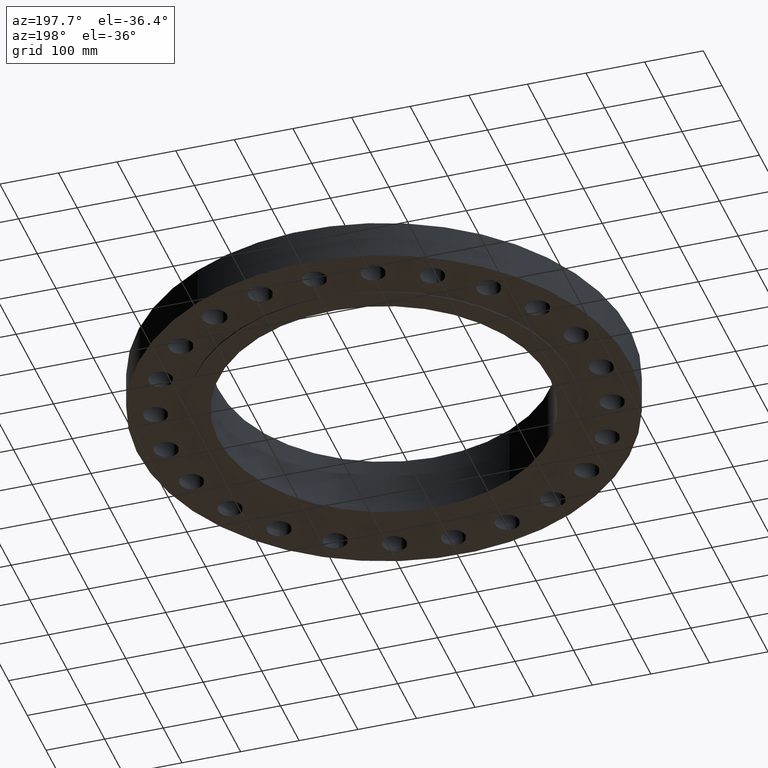
[diagram: clean part render]
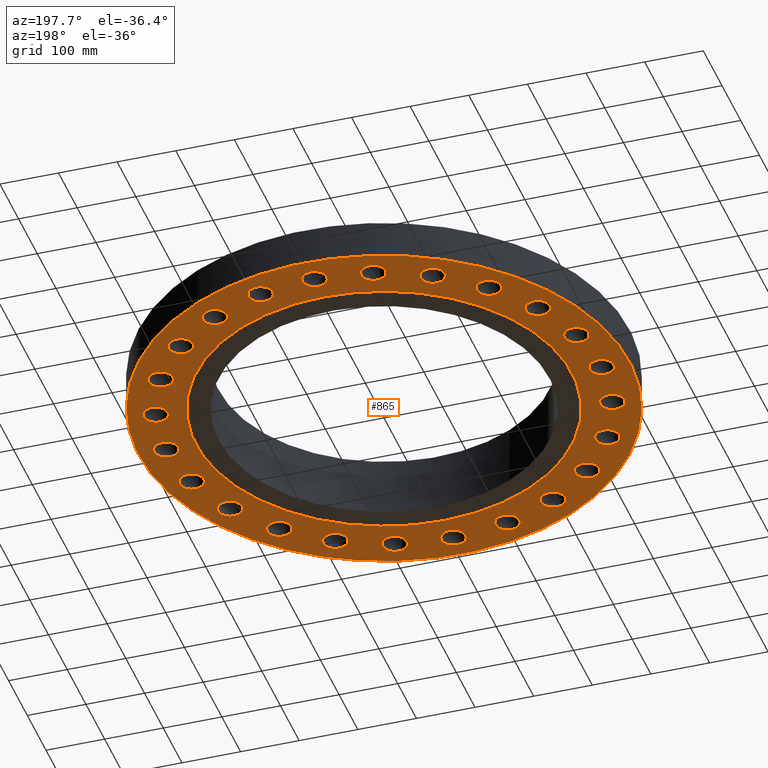
[diagram: same view with one face highlighted and labeled with its STEP entity id]
A machine part, auxiliary view. The second image highlights one B-rep face of the part: STEP entity #865.
In plain terms, the highlighted planar face has unit normal (0, 0, -1).
Its self-contained STEP definition (entity closure, byte-faithful):
#51=AXIS2_PLACEMENT_3D('Circle Axis2P3D',#49,#50,$) ;
#77=AXIS2_PLACEMENT_3D('Circle Axis2P3D',#75,#76,$) ;
#99=AXIS2_PLACEMENT_3D('Circle Axis2P3D',#97,#98,$) ;
#134=AXIS2_PLACEMENT_3D('Circle Axis2P3D',#132,#133,$) ;
#405=AXIS2_PLACEMENT_3D('Circle Axis2P3D',#403,#404,$) ;
#424=AXIS2_PLACEMENT_3D('Circle Axis2P3D',#422,#423,$) ;
#437=AXIS2_PLACEMENT_3D('Plane Axis2P3D',#434,#435,#436) ;
#453=AXIS2_PLACEMENT_3D('Circle Axis2P3D',#451,#452,$) ;
#462=AXIS2_PLACEMENT_3D('Circle Axis2P3D',#460,#461,$) ;
#471=AXIS2_PLACEMENT_3D('Circle Axis2P3D',#469,#470,$) ;
#480=AXIS2_PLACEMENT_3D('Circle Axis2P3D',#478,#479,$) ;
#489=AXIS2_PLACEMENT_3D('Circle Axis2P3D',#487,#488,$) ;
#498=AXIS2_PLACEMENT_3D('Circle Axis2P3D',#496,#497,$) ;
#507=AXIS2_PLACEMENT_3D('Circle Axis2P3D',#505,#506,$) ;
#516=AXIS2_PLACEMENT_3D('Circle Axis2P3D',#514,#515,$) ;
#525=AXIS2_PLACEMENT_3D('Circle Axis2P3D',#523,#524,$) ;
#534=AXIS2_PLACEMENT_3D('Circle Axis2P3D',#532,#533,$) ;
#543=AXIS2_PLACEMENT_3D('Circle Axis2P3D',#541,#542,$) ;
#552=AXIS2_PLACEMENT_3D('Circle Axis2P3D',#550,#551,$) ;
#561=AXIS2_PLACEMENT_3D('Circle Axis2P3D',#559,#560,$) ;
#570=AXIS2_PLACEMENT_3D('Circle Axis2P3D',#568,#569,$) ;
#579=AXIS2_PLACEMENT_3D('Circle Axis2P3D',#577,#578,$) ;
#588=AXIS2_PLACEMENT_3D('Circle Axis2P3D',#586,#587,$) ;
#597=AXIS2_PLACEMENT_3D('Circle Axis2P3D',#595,#596,$) ;
#606=AXIS2_PLACEMENT_3D('Circle Axis2P3D',#604,#605,$) ;
#615=AXIS2_PLACEMENT_3D('Circle Axis2P3D',#613,#614,$) ;
#624=AXIS2_PLACEMENT_3D('Circle Axis2P3D',#622,#623,$) ;
#633=AXIS2_PLACEMENT_3D('Circle Axis2P3D',#631,#632,$) ;
#642=AXIS2_PLACEMENT_3D('Circle Axis2P3D',#640,#641,$) ;
#651=AXIS2_PLACEMENT_3D('Circle Axis2P3D',#649,#650,$) ;
#660=AXIS2_PLACEMENT_3D('Circle Axis2P3D',#658,#659,$) ;
#669=AXIS2_PLACEMENT_3D('Circle Axis2P3D',#667,#668,$) ;
#678=AXIS2_PLACEMENT_3D('Circle Axis2P3D',#676,#677,$) ;
#687=AXIS2_PLACEMENT_3D('Circle Axis2P3D',#685,#686,$) ;
#696=AXIS2_PLACEMENT_3D('Circle Axis2P3D',#694,#695,$) ;
#705=AXIS2_PLACEMENT_3D('Circle Axis2P3D',#703,#704,$) ;
#714=AXIS2_PLACEMENT_3D('Circle Axis2P3D',#712,#713,$) ;
#723=AXIS2_PLACEMENT_3D('Circle Axis2P3D',#721,#722,$) ;
#732=AXIS2_PLACEMENT_3D('Circle Axis2P3D',#730,#731,$) ;
#741=AXIS2_PLACEMENT_3D('Circle Axis2P3D',#739,#740,$) ;
#750=AXIS2_PLACEMENT_3D('Circle Axis2P3D',#748,#749,$) ;
#759=AXIS2_PLACEMENT_3D('Circle Axis2P3D',#757,#758,$) ;
#768=AXIS2_PLACEMENT_3D('Circle Axis2P3D',#766,#767,$) ;
#777=AXIS2_PLACEMENT_3D('Circle Axis2P3D',#775,#776,$) ;
#786=AXIS2_PLACEMENT_3D('Circle Axis2P3D',#784,#785,$) ;
#795=AXIS2_PLACEMENT_3D('Circle Axis2P3D',#793,#794,$) ;
#804=AXIS2_PLACEMENT_3D('Circle Axis2P3D',#802,#803,$) ;
#813=AXIS2_PLACEMENT_3D('Circle Axis2P3D',#811,#812,$) ;
#822=AXIS2_PLACEMENT_3D('Circle Axis2P3D',#820,#821,$) ;
#831=AXIS2_PLACEMENT_3D('Circle Axis2P3D',#829,#830,$) ;
#840=AXIS2_PLACEMENT_3D('Circle Axis2P3D',#838,#839,$) ;
#849=AXIS2_PLACEMENT_3D('Circle Axis2P3D',#847,#848,$) ;
#858=AXIS2_PLACEMENT_3D('Circle Axis2P3D',#856,#857,$) ;
#44=CARTESIAN_POINT('Vertex',(13.9097702121,0.390731813964,0.)) ;
#49=CARTESIAN_POINT('Axis2P3D Location',(14.6250000001,0.,0.)) ;
#53=CARTESIAN_POINT('Vertex',(15.340229788,-0.390731813964,0.)) ;
#75=CARTESIAN_POINT('Axis2P3D Location',(14.6250000001,0.,0.)) ;
#97=CARTESIAN_POINT('Axis2P3D Location',(0.,0.,2.51767111096E-015)) ;
#101=CARTESIAN_POINT('Vertex',(-7.910521387,-14.4801122712,2.51767111096E-015)) ;
#103=CARTESIAN_POINT('Vertex',(7.910521387,14.4801122712,2.51767111096E-015)) ;
#132=CARTESIAN_POINT('Axis2P3D Location',(0.,0.,2.51767111096E-015)) ;
#400=CARTESIAN_POINT('Vertex',(-6.0527474249,-11.0794798439,1.39870617276E-015)) ;
#403=CARTESIAN_POINT('Axis2P3D Location',(0.,0.,1.67844740731E-015)) ;
#407=CARTESIAN_POINT('Vertex',(6.0527474249,11.0794798439,1.39870617276E-015)) ;
#422=CARTESIAN_POINT('Axis2P3D Location',(0.,0.,1.67844740731E-015)) ;
#434=CARTESIAN_POINT('Axis2P3D Location',(0.,12.6250000001,0.)) ;
#451=CARTESIAN_POINT('Axis2P3D Location',(14.1266652095,-3.78522853464,0.)) ;
#455=CARTESIAN_POINT('Vertex',(13.5369351206,-3.22269549363,0.)) ;
#457=CARTESIAN_POINT('Vertex',(14.7163952985,-4.34776157564,0.)) ;
#460=CARTESIAN_POINT('Axis2P3D Location',(14.1266652095,-3.78522853464,0.)) ;
#469=CARTESIAN_POINT('Axis2P3D Location',(12.6656215304,-7.31250000003,0.)) ;
#473=CARTESIAN_POINT('Vertex',(12.2415802715,-6.6165014291,0.)) ;
#475=CARTESIAN_POINT('Vertex',(13.0896627893,-8.00849857096,0.)) ;
#478=CARTESIAN_POINT('Axis2P3D Location',(12.6656215304,-7.31250000003,0.)) ;
#487=CARTESIAN_POINT('Axis2P3D Location',(10.3414366749,-10.3414366749,0.)) ;
#491=CARTESIAN_POINT('Vertex',(10.111981957,-9.55940372645,0.)) ;
#493=CARTESIAN_POINT('Vertex',(10.5708913928,-11.1234696233,0.)) ;
#496=CARTESIAN_POINT('Axis2P3D Location',(10.3414366749,-10.3414366749,0.)) ;
#505=CARTESIAN_POINT('Axis2P3D Location',(7.31250000003,-12.6656215304,0.)) ;
#509=CARTESIAN_POINT('Vertex',(7.29326878302,-11.8508484575,0.)) ;
#511=CARTESIAN_POINT('Vertex',(7.33173121704,-13.4803946033,0.)) ;
#514=CARTESIAN_POINT('Axis2P3D Location',(7.31250000003,-12.6656215304,0.)) ;
#523=CARTESIAN_POINT('Axis2P3D Location',(3.78522853464,-14.1266652095,0.)) ;
#527=CARTESIAN_POINT('Vertex',(3.97753139416,-13.3346774506,0.)) ;
#529=CARTESIAN_POINT('Vertex',(3.59292567512,-14.9186529684,0.)) ;
#532=CARTESIAN_POINT('Axis2P3D Location',(3.78522853464,-14.1266652095,0.)) ;
#541=CARTESIAN_POINT('Axis2P3D Location',(-1.39870617276E-015,-14.6250000001,0.)) ;
#545=CARTESIAN_POINT('Vertex',(0.390731813964,-13.9097702121,0.)) ;
#547=CARTESIAN_POINT('Vertex',(-0.390731813964,-15.340229788,0.)) ;
#550=CARTESIAN_POINT('Axis2P3D Location',(-2.44773580232E-015,-14.6250000001,0.)) ;
#559=CARTESIAN_POINT('Axis2P3D Location',(-3.78522853464,-14.1266652095,0.)) ;
#563=CARTESIAN_POINT('Vertex',(-3.22269549363,-13.5369351206,0.)) ;
#565=CARTESIAN_POINT('Vertex',(-4.34776157564,-14.7163952985,-1.1189649382E-015)) ;
#568=CARTESIAN_POINT('Axis2P3D Location',(-3.78522853464,-14.1266652095,0.)) ;
#577=CARTESIAN_POINT('Axis2P3D Location',(-7.31250000003,-12.6656215304,0.)) ;
#581=CARTESIAN_POINT('Vertex',(-6.6165014291,-12.2415802715,0.)) ;
#583=CARTESIAN_POINT('Vertex',(-8.00849857096,-13.0896627893,-2.23792987641E-015)) ;
#586=CARTESIAN_POINT('Axis2P3D Location',(-7.31250000003,-12.6656215304,0.)) ;
#595=CARTESIAN_POINT('Axis2P3D Location',(-10.3414366749,-10.3414366749,0.)) ;
#599=CARTESIAN_POINT('Vertex',(-9.55940372645,-10.111981957,0.)) ;
#601=CARTESIAN_POINT('Vertex',(-11.1234696233,-10.5708913928,0.)) ;
#604=CARTESIAN_POINT('Axis2P3D Location',(-10.3414366749,-10.3414366749,0.)) ;
#613=CARTESIAN_POINT('Axis2P3D Location',(-12.6656215304,-7.31250000003,0.)) ;
#617=CARTESIAN_POINT('Vertex',(-11.8508484575,-7.29326878302,0.)) ;
#619=CARTESIAN_POINT('Vertex',(-13.4803946033,-7.33173121704,0.)) ;
#622=CARTESIAN_POINT('Axis2P3D Location',(-12.6656215304,-7.31250000003,0.)) ;
#631=CARTESIAN_POINT('Axis2P3D Location',(-14.1266652095,-3.78522853464,0.)) ;
#635=CARTESIAN_POINT('Vertex',(-13.3346774506,-3.97753139416,0.)) ;
#637=CARTESIAN_POINT('Vertex',(-14.9186529684,-3.59292567512,0.)) ;
#640=CARTESIAN_POINT('Axis2P3D Location',(-14.1266652095,-3.78522853464,0.)) ;
#649=CARTESIAN_POINT('Axis2P3D Location',(-14.6250000001,0.,0.)) ;
#653=CARTESIAN_POINT('Vertex',(-13.9097702121,-0.390731813964,0.)) ;
#655=CARTESIAN_POINT('Vertex',(-15.340229788,0.390731813964,0.)) ;
#658=CARTESIAN_POINT('Axis2P3D Location',(-14.6250000001,-2.23792987641E-015,0.)) ;
#667=CARTESIAN_POINT('Axis2P3D Location',(-14.1266652095,3.78522853464,0.)) ;
#671=CARTESIAN_POINT('Vertex',(-13.5369351206,3.22269549363,0.)) ;
#673=CARTESIAN_POINT('Vertex',(-14.7163952985,4.34776157564,0.)) ;
#676=CARTESIAN_POINT('Axis2P3D Location',(-14.1266652095,3.78522853464,0.)) ;
#685=CARTESIAN_POINT('Axis2P3D Location',(-12.6656215304,7.31250000003,0.)) ;
#689=CARTESIAN_POINT('Vertex',(-12.2415802715,6.6165014291,0.)) ;
#691=CARTESIAN_POINT('Vertex',(-13.0896627893,8.00849857096,0.)) ;
#694=CARTESIAN_POINT('Axis2P3D Location',(-12.6656215304,7.31250000003,0.)) ;
#703=CARTESIAN_POINT('Axis2P3D Location',(-10.3414366749,10.3414366749,0.)) ;
#707=CARTESIAN_POINT('Vertex',(-10.111981957,9.55940372645,0.)) ;
#709=CARTESIAN_POINT('Vertex',(-10.5708913928,11.1234696233,0.)) ;
#712=CARTESIAN_POINT('Axis2P3D Location',(-10.3414366749,10.3414366749,0.)) ;
#721=CARTESIAN_POINT('Axis2P3D Location',(-7.31250000003,12.6656215304,0.)) ;
#725=CARTESIAN_POINT('Vertex',(-7.29326878302,11.8508484575,0.)) ;
#727=CARTESIAN_POINT('Vertex',(-7.33173121704,13.4803946033,0.)) ;
#730=CARTESIAN_POINT('Axis2P3D Location',(-7.31250000003,12.6656215304,0.)) ;
#739=CARTESIAN_POINT('Axis2P3D Location',(-3.78522853464,14.1266652095,0.)) ;
#743=CARTESIAN_POINT('Vertex',(-3.97753139416,13.3346774506,0.)) ;
#745=CARTESIAN_POINT('Vertex',(-3.59292567512,14.9186529684,0.)) ;
#748=CARTESIAN_POINT('Axis2P3D Location',(-3.78522853464,14.1266652095,0.)) ;
#757=CARTESIAN_POINT('Axis2P3D Location',(-3.35689481461E-015,14.6250000001,0.)) ;
#761=CARTESIAN_POINT('Vertex',(-0.390731813964,13.9097702121,0.)) ;
#763=CARTESIAN_POINT('Vertex',(0.390731813964,15.340229788,0.)) ;
#766=CARTESIAN_POINT('Axis2P3D Location',(-2.09805925913E-015,14.6250000001,0.)) ;
#775=CARTESIAN_POINT('Axis2P3D Location',(3.78522853464,14.1266652095,0.)) ;
#779=CARTESIAN_POINT('Vertex',(3.22269549363,13.5369351206,0.)) ;
#781=CARTESIAN_POINT('Vertex',(4.34776157564,14.7163952985,0.)) ;
#784=CARTESIAN_POINT('Axis2P3D Location',(3.78522853464,14.1266652095,0.)) ;
#793=CARTESIAN_POINT('Axis2P3D Location',(7.31250000003,12.6656215304,0.)) ;
#797=CARTESIAN_POINT('Vertex',(6.6165014291,12.2415802715,0.)) ;
#799=CARTESIAN_POINT('Vertex',(8.00849857096,13.0896627893,0.)) ;
#802=CARTESIAN_POINT('Axis2P3D Location',(7.31250000003,12.6656215304,0.)) ;
#811=CARTESIAN_POINT('Axis2P3D Location',(10.3414366749,10.3414366749,0.)) ;
#815=CARTESIAN_POINT('Vertex',(9.55940372645,10.111981957,0.)) ;
#817=CARTESIAN_POINT('Vertex',(11.1234696233,10.5708913928,0.)) ;
#820=CARTESIAN_POINT('Axis2P3D Location',(10.3414366749,10.3414366749,0.)) ;
#829=CARTESIAN_POINT('Axis2P3D Location',(12.6656215304,7.31250000003,0.)) ;
#833=CARTESIAN_POINT('Vertex',(11.8508484575,7.29326878302,0.)) ;
#835=CARTESIAN_POINT('Vertex',(13.4803946033,7.33173121704,0.)) ;
#838=CARTESIAN_POINT('Axis2P3D Location',(12.6656215304,7.31250000003,0.)) ;
#847=CARTESIAN_POINT('Axis2P3D Location',(14.1266652095,3.78522853464,0.)) ;
#851=CARTESIAN_POINT('Vertex',(13.3346774506,3.97753139416,0.)) ;
#853=CARTESIAN_POINT('Vertex',(14.9186529684,3.59292567512,0.)) ;
#856=CARTESIAN_POINT('Axis2P3D Location',(14.1266652095,3.78522853464,0.)) ;
#50=DIRECTION('Axis2P3D Direction',(0.,-0.,-0.0393700787402)) ;
#76=DIRECTION('Axis2P3D Direction',(0.,-0.,-0.0393700787402)) ;
#98=DIRECTION('Axis2P3D Direction',(0.,0.,-0.0393700787402)) ;
#133=DIRECTION('Axis2P3D Direction',(0.,0.,-0.0393700787402)) ;
#404=DIRECTION('Axis2P3D Direction',(0.,0.,-0.0393700787402)) ;
#423=DIRECTION('Axis2P3D Direction',(0.,0.,-0.0393700787402)) ;
#435=DIRECTION('Axis2P3D Direction',(0.,0.,-0.0393700787402)) ;
#436=DIRECTION('Axis2P3D XDirection',(0.0393700787402,0.,0.)) ;
#452=DIRECTION('Axis2P3D Direction',(0.,0.,-0.0393700787402)) ;
#461=DIRECTION('Axis2P3D Direction',(0.,0.,-0.0393700787402)) ;
#470=DIRECTION('Axis2P3D Direction',(0.,0.,-0.0393700787402)) ;
#479=DIRECTION('Axis2P3D Direction',(0.,0.,-0.0393700787402)) ;
#488=DIRECTION('Axis2P3D Direction',(0.,0.,-0.0393700787402)) ;
#497=DIRECTION('Axis2P3D Direction',(0.,0.,-0.0393700787402)) ;
#506=DIRECTION('Axis2P3D Direction',(0.,0.,-0.0393700787402)) ;
#515=DIRECTION('Axis2P3D Direction',(0.,0.,-0.0393700787402)) ;
#524=DIRECTION('Axis2P3D Direction',(0.,0.,-0.0393700787402)) ;
#533=DIRECTION('Axis2P3D Direction',(0.,0.,-0.0393700787402)) ;
#542=DIRECTION('Axis2P3D Direction',(0.,0.,-0.0393700787402)) ;
#551=DIRECTION('Axis2P3D Direction',(0.,0.,-0.0393700787402)) ;
#560=DIRECTION('Axis2P3D Direction',(0.,0.,-0.0393700787402)) ;
#569=DIRECTION('Axis2P3D Direction',(0.,0.,-0.0393700787402)) ;
#578=DIRECTION('Axis2P3D Direction',(0.,0.,-0.0393700787402)) ;
#587=DIRECTION('Axis2P3D Direction',(0.,0.,-0.0393700787402)) ;
#596=DIRECTION('Axis2P3D Direction',(0.,0.,-0.0393700787402)) ;
#605=DIRECTION('Axis2P3D Direction',(0.,0.,-0.0393700787402)) ;
#614=DIRECTION('Axis2P3D Direction',(0.,0.,-0.0393700787402)) ;
#623=DIRECTION('Axis2P3D Direction',(0.,0.,-0.0393700787402)) ;
#632=DIRECTION('Axis2P3D Direction',(0.,0.,-0.0393700787402)) ;
#641=DIRECTION('Axis2P3D Direction',(0.,0.,-0.0393700787402)) ;
#650=DIRECTION('Axis2P3D Direction',(0.,0.,-0.0393700787402)) ;
#659=DIRECTION('Axis2P3D Direction',(0.,0.,-0.0393700787402)) ;
#668=DIRECTION('Axis2P3D Direction',(0.,0.,-0.0393700787402)) ;
#677=DIRECTION('Axis2P3D Direction',(0.,0.,-0.0393700787402)) ;
#686=DIRECTION('Axis2P3D Direction',(0.,0.,-0.0393700787402)) ;
#695=DIRECTION('Axis2P3D Direction',(0.,0.,-0.0393700787402)) ;
#704=DIRECTION('Axis2P3D Direction',(0.,0.,-0.0393700787402)) ;
#713=DIRECTION('Axis2P3D Direction',(0.,0.,-0.0393700787402)) ;
#722=DIRECTION('Axis2P3D Direction',(0.,0.,-0.0393700787402)) ;
#731=DIRECTION('Axis2P3D Direction',(0.,0.,-0.0393700787402)) ;
#740=DIRECTION('Axis2P3D Direction',(0.,0.,-0.0393700787402)) ;
#749=DIRECTION('Axis2P3D Direction',(0.,0.,-0.0393700787402)) ;
#758=DIRECTION('Axis2P3D Direction',(0.,0.,-0.0393700787402)) ;
#767=DIRECTION('Axis2P3D Direction',(0.,0.,-0.0393700787402)) ;
#776=DIRECTION('Axis2P3D Direction',(0.,0.,-0.0393700787402)) ;
#785=DIRECTION('Axis2P3D Direction',(0.,0.,-0.0393700787402)) ;
#794=DIRECTION('Axis2P3D Direction',(0.,0.,-0.0393700787402)) ;
#803=DIRECTION('Axis2P3D Direction',(0.,0.,-0.0393700787402)) ;
#812=DIRECTION('Axis2P3D Direction',(0.,0.,-0.0393700787402)) ;
#821=DIRECTION('Axis2P3D Direction',(0.,0.,-0.0393700787402)) ;
#830=DIRECTION('Axis2P3D Direction',(0.,0.,-0.0393700787402)) ;
#839=DIRECTION('Axis2P3D Direction',(0.,0.,-0.0393700787402)) ;
#848=DIRECTION('Axis2P3D Direction',(0.,0.,-0.0393700787402)) ;
#857=DIRECTION('Axis2P3D Direction',(0.,0.,-0.0393700787402)) ;
#440=ORIENTED_EDGE('',*,*,#105,.T.) ;
#441=ORIENTED_EDGE('',*,*,#136,.T.) ;
#444=ORIENTED_EDGE('',*,*,#79,.F.) ;
#445=ORIENTED_EDGE('',*,*,#55,.F.) ;
#448=ORIENTED_EDGE('',*,*,#426,.F.) ;
#449=ORIENTED_EDGE('',*,*,#409,.F.) ;
#466=ORIENTED_EDGE('',*,*,#459,.F.) ;
#467=ORIENTED_EDGE('',*,*,#464,.F.) ;
#484=ORIENTED_EDGE('',*,*,#477,.F.) ;
#485=ORIENTED_EDGE('',*,*,#482,.F.) ;
#502=ORIENTED_EDGE('',*,*,#495,.F.) ;
#503=ORIENTED_EDGE('',*,*,#500,.F.) ;
#520=ORIENTED_EDGE('',*,*,#513,.F.) ;
#521=ORIENTED_EDGE('',*,*,#518,.F.) ;
#538=ORIENTED_EDGE('',*,*,#531,.F.) ;
#539=ORIENTED_EDGE('',*,*,#536,.F.) ;
#556=ORIENTED_EDGE('',*,*,#549,.F.) ;
#557=ORIENTED_EDGE('',*,*,#554,.F.) ;
#574=ORIENTED_EDGE('',*,*,#567,.F.) ;
#575=ORIENTED_EDGE('',*,*,#572,.F.) ;
#592=ORIENTED_EDGE('',*,*,#585,.F.) ;
#593=ORIENTED_EDGE('',*,*,#590,.F.) ;
#610=ORIENTED_EDGE('',*,*,#603,.F.) ;
#611=ORIENTED_EDGE('',*,*,#608,.F.) ;
#628=ORIENTED_EDGE('',*,*,#621,.F.) ;
#629=ORIENTED_EDGE('',*,*,#626,.F.) ;
#646=ORIENTED_EDGE('',*,*,#639,.F.) ;
#647=ORIENTED_EDGE('',*,*,#644,.F.) ;
#664=ORIENTED_EDGE('',*,*,#657,.F.) ;
#665=ORIENTED_EDGE('',*,*,#662,.F.) ;
#682=ORIENTED_EDGE('',*,*,#675,.F.) ;
#683=ORIENTED_EDGE('',*,*,#680,.F.) ;
#700=ORIENTED_EDGE('',*,*,#693,.F.) ;
#701=ORIENTED_EDGE('',*,*,#698,.F.) ;
#718=ORIENTED_EDGE('',*,*,#711,.F.) ;
#719=ORIENTED_EDGE('',*,*,#716,.F.) ;
#736=ORIENTED_EDGE('',*,*,#729,.F.) ;
#737=ORIENTED_EDGE('',*,*,#734,.F.) ;
#754=ORIENTED_EDGE('',*,*,#747,.F.) ;
#755=ORIENTED_EDGE('',*,*,#752,.F.) ;
#772=ORIENTED_EDGE('',*,*,#765,.F.) ;
#773=ORIENTED_EDGE('',*,*,#770,.F.) ;
#790=ORIENTED_EDGE('',*,*,#783,.F.) ;
#791=ORIENTED_EDGE('',*,*,#788,.F.) ;
#808=ORIENTED_EDGE('',*,*,#801,.F.) ;
#809=ORIENTED_EDGE('',*,*,#806,.F.) ;
#826=ORIENTED_EDGE('',*,*,#819,.F.) ;
#827=ORIENTED_EDGE('',*,*,#824,.F.) ;
#844=ORIENTED_EDGE('',*,*,#837,.F.) ;
#845=ORIENTED_EDGE('',*,*,#842,.F.) ;
#862=ORIENTED_EDGE('',*,*,#855,.F.) ;
#863=ORIENTED_EDGE('',*,*,#860,.F.) ;
#446=FACE_BOUND('',#443,.T.) ;
#450=FACE_BOUND('',#447,.T.) ;
#468=FACE_BOUND('',#465,.T.) ;
#486=FACE_BOUND('',#483,.T.) ;
#504=FACE_BOUND('',#501,.T.) ;
#522=FACE_BOUND('',#519,.T.) ;
#540=FACE_BOUND('',#537,.T.) ;
#558=FACE_BOUND('',#555,.T.) ;
#576=FACE_BOUND('',#573,.T.) ;
#594=FACE_BOUND('',#591,.T.) ;
#612=FACE_BOUND('',#609,.T.) ;
#630=FACE_BOUND('',#627,.T.) ;
#648=FACE_BOUND('',#645,.T.) ;
#666=FACE_BOUND('',#663,.T.) ;
#684=FACE_BOUND('',#681,.T.) ;
#702=FACE_BOUND('',#699,.T.) ;
#720=FACE_BOUND('',#717,.T.) ;
#738=FACE_BOUND('',#735,.T.) ;
#756=FACE_BOUND('',#753,.T.) ;
#774=FACE_BOUND('',#771,.T.) ;
#792=FACE_BOUND('',#789,.T.) ;
#810=FACE_BOUND('',#807,.T.) ;
#828=FACE_BOUND('',#825,.T.) ;
#846=FACE_BOUND('',#843,.T.) ;
#864=FACE_BOUND('',#861,.T.) ;
#865=ADVANCED_FACE('PartBody',(#442,#446,#450,#468,#486,#504,#522,#540,#558,#576,#594,#612,#630,#648,#666,#684,#702,#720,#738,#756,#774,#792,#810,#828,#846,#864),#438,.T.) ;
#52=CIRCLE('generated circle',#51,0.815000000003) ;
#78=CIRCLE('generated circle',#77,0.815000000003) ;
#100=CIRCLE('generated circle',#99,16.5000000001) ;
#135=CIRCLE('generated circle',#134,16.5000000001) ;
#406=CIRCLE('generated circle',#405,12.6250000001) ;
#425=CIRCLE('generated circle',#424,12.6250000001) ;
#454=CIRCLE('generated circle',#453,0.815000000003) ;
#463=CIRCLE('generated circle',#462,0.815000000003) ;
#472=CIRCLE('generated circle',#471,0.815000000003) ;
#481=CIRCLE('generated circle',#480,0.815000000003) ;
#490=CIRCLE('generated circle',#489,0.815000000003) ;
#499=CIRCLE('generated circle',#498,0.815000000003) ;
#508=CIRCLE('generated circle',#507,0.815000000003) ;
#517=CIRCLE('generated circle',#516,0.815000000003) ;
#526=CIRCLE('generated circle',#525,0.815000000003) ;
#535=CIRCLE('generated circle',#534,0.815000000003) ;
#544=CIRCLE('generated circle',#543,0.815000000003) ;
#553=CIRCLE('generated circle',#552,0.815000000003) ;
#562=CIRCLE('generated circle',#561,0.815000000003) ;
#571=CIRCLE('generated circle',#570,0.815000000003) ;
#580=CIRCLE('generated circle',#579,0.815000000003) ;
#589=CIRCLE('generated circle',#588,0.815000000003) ;
#598=CIRCLE('generated circle',#597,0.815000000003) ;
#607=CIRCLE('generated circle',#606,0.815000000003) ;
#616=CIRCLE('generated circle',#615,0.815000000003) ;
#625=CIRCLE('generated circle',#624,0.815000000003) ;
#634=CIRCLE('generated circle',#633,0.815000000003) ;
#643=CIRCLE('generated circle',#642,0.815000000003) ;
#652=CIRCLE('generated circle',#651,0.815000000003) ;
#661=CIRCLE('generated circle',#660,0.815000000003) ;
#670=CIRCLE('generated circle',#669,0.815000000003) ;
#679=CIRCLE('generated circle',#678,0.815000000003) ;
#688=CIRCLE('generated circle',#687,0.815000000003) ;
#697=CIRCLE('generated circle',#696,0.815000000003) ;
#706=CIRCLE('generated circle',#705,0.815000000003) ;
#715=CIRCLE('generated circle',#714,0.815000000003) ;
#724=CIRCLE('generated circle',#723,0.815000000003) ;
#733=CIRCLE('generated circle',#732,0.815000000003) ;
#742=CIRCLE('generated circle',#741,0.815000000003) ;
#751=CIRCLE('generated circle',#750,0.815000000003) ;
#760=CIRCLE('generated circle',#759,0.815000000003) ;
#769=CIRCLE('generated circle',#768,0.815000000003) ;
#778=CIRCLE('generated circle',#777,0.815000000003) ;
#787=CIRCLE('generated circle',#786,0.815000000003) ;
#796=CIRCLE('generated circle',#795,0.815000000003) ;
#805=CIRCLE('generated circle',#804,0.815000000003) ;
#814=CIRCLE('generated circle',#813,0.815000000003) ;
#823=CIRCLE('generated circle',#822,0.815000000003) ;
#832=CIRCLE('generated circle',#831,0.815000000003) ;
#841=CIRCLE('generated circle',#840,0.815000000003) ;
#850=CIRCLE('generated circle',#849,0.815000000003) ;
#859=CIRCLE('generated circle',#858,0.815000000003) ;
#55=EDGE_CURVE('',#45,#54,#52,.T.) ;
#79=EDGE_CURVE('',#54,#45,#78,.T.) ;
#105=EDGE_CURVE('',#102,#104,#100,.T.) ;
#136=EDGE_CURVE('',#104,#102,#135,.T.) ;
#409=EDGE_CURVE('',#401,#408,#406,.T.) ;
#426=EDGE_CURVE('',#408,#401,#425,.T.) ;
#459=EDGE_CURVE('',#456,#458,#454,.T.) ;
#464=EDGE_CURVE('',#458,#456,#463,.T.) ;
#477=EDGE_CURVE('',#474,#476,#472,.T.) ;
#482=EDGE_CURVE('',#476,#474,#481,.T.) ;
#495=EDGE_CURVE('',#492,#494,#490,.T.) ;
#500=EDGE_CURVE('',#494,#492,#499,.T.) ;
#513=EDGE_CURVE('',#510,#512,#508,.T.) ;
#518=EDGE_CURVE('',#512,#510,#517,.T.) ;
#531=EDGE_CURVE('',#528,#530,#526,.T.) ;
#536=EDGE_CURVE('',#530,#528,#535,.T.) ;
#549=EDGE_CURVE('',#546,#548,#544,.T.) ;
#554=EDGE_CURVE('',#548,#546,#553,.T.) ;
#567=EDGE_CURVE('',#564,#566,#562,.T.) ;
#572=EDGE_CURVE('',#566,#564,#571,.T.) ;
#585=EDGE_CURVE('',#582,#584,#580,.T.) ;
#590=EDGE_CURVE('',#584,#582,#589,.T.) ;
#603=EDGE_CURVE('',#600,#602,#598,.T.) ;
#608=EDGE_CURVE('',#602,#600,#607,.T.) ;
#621=EDGE_CURVE('',#618,#620,#616,.T.) ;
#626=EDGE_CURVE('',#620,#618,#625,.T.) ;
#639=EDGE_CURVE('',#636,#638,#634,.T.) ;
#644=EDGE_CURVE('',#638,#636,#643,.T.) ;
#657=EDGE_CURVE('',#654,#656,#652,.T.) ;
#662=EDGE_CURVE('',#656,#654,#661,.T.) ;
#675=EDGE_CURVE('',#672,#674,#670,.T.) ;
#680=EDGE_CURVE('',#674,#672,#679,.T.) ;
#693=EDGE_CURVE('',#690,#692,#688,.T.) ;
#698=EDGE_CURVE('',#692,#690,#697,.T.) ;
#711=EDGE_CURVE('',#708,#710,#706,.T.) ;
#716=EDGE_CURVE('',#710,#708,#715,.T.) ;
#729=EDGE_CURVE('',#726,#728,#724,.T.) ;
#734=EDGE_CURVE('',#728,#726,#733,.T.) ;
#747=EDGE_CURVE('',#744,#746,#742,.T.) ;
#752=EDGE_CURVE('',#746,#744,#751,.T.) ;
#765=EDGE_CURVE('',#762,#764,#760,.T.) ;
#770=EDGE_CURVE('',#764,#762,#769,.T.) ;
#783=EDGE_CURVE('',#780,#782,#778,.T.) ;
#788=EDGE_CURVE('',#782,#780,#787,.T.) ;
#801=EDGE_CURVE('',#798,#800,#796,.T.) ;
#806=EDGE_CURVE('',#800,#798,#805,.T.) ;
#819=EDGE_CURVE('',#816,#818,#814,.T.) ;
#824=EDGE_CURVE('',#818,#816,#823,.T.) ;
#837=EDGE_CURVE('',#834,#836,#832,.T.) ;
#842=EDGE_CURVE('',#836,#834,#841,.T.) ;
#855=EDGE_CURVE('',#852,#854,#850,.T.) ;
#860=EDGE_CURVE('',#854,#852,#859,.T.) ;
#439=EDGE_LOOP('',(#440,#441)) ;
#443=EDGE_LOOP('',(#444,#445)) ;
#447=EDGE_LOOP('',(#448,#449)) ;
#465=EDGE_LOOP('',(#466,#467)) ;
#483=EDGE_LOOP('',(#484,#485)) ;
#501=EDGE_LOOP('',(#502,#503)) ;
#519=EDGE_LOOP('',(#520,#521)) ;
#537=EDGE_LOOP('',(#538,#539)) ;
#555=EDGE_LOOP('',(#556,#557)) ;
#573=EDGE_LOOP('',(#574,#575)) ;
#591=EDGE_LOOP('',(#592,#593)) ;
#609=EDGE_LOOP('',(#610,#611)) ;
#627=EDGE_LOOP('',(#628,#629)) ;
#645=EDGE_LOOP('',(#646,#647)) ;
#663=EDGE_LOOP('',(#664,#665)) ;
#681=EDGE_LOOP('',(#682,#683)) ;
#699=EDGE_LOOP('',(#700,#701)) ;
#717=EDGE_LOOP('',(#718,#719)) ;
#735=EDGE_LOOP('',(#736,#737)) ;
#753=EDGE_LOOP('',(#754,#755)) ;
#771=EDGE_LOOP('',(#772,#773)) ;
#789=EDGE_LOOP('',(#790,#791)) ;
#807=EDGE_LOOP('',(#808,#809)) ;
#825=EDGE_LOOP('',(#826,#827)) ;
#843=EDGE_LOOP('',(#844,#845)) ;
#861=EDGE_LOOP('',(#862,#863)) ;
#442=FACE_OUTER_BOUND('',#439,.T.) ;
#438=PLANE('',#437) ;
#45=VERTEX_POINT('',#44) ;
#54=VERTEX_POINT('',#53) ;
#102=VERTEX_POINT('',#101) ;
#104=VERTEX_POINT('',#103) ;
#401=VERTEX_POINT('',#400) ;
#408=VERTEX_POINT('',#407) ;
#456=VERTEX_POINT('',#455) ;
#458=VERTEX_POINT('',#457) ;
#474=VERTEX_POINT('',#473) ;
#476=VERTEX_POINT('',#475) ;
#492=VERTEX_POINT('',#491) ;
#494=VERTEX_POINT('',#493) ;
#510=VERTEX_POINT('',#509) ;
#512=VERTEX_POINT('',#511) ;
#528=VERTEX_POINT('',#527) ;
#530=VERTEX_POINT('',#529) ;
#546=VERTEX_POINT('',#545) ;
#548=VERTEX_POINT('',#547) ;
#564=VERTEX_POINT('',#563) ;
#566=VERTEX_POINT('',#565) ;
#582=VERTEX_POINT('',#581) ;
#584=VERTEX_POINT('',#583) ;
#600=VERTEX_POINT('',#599) ;
#602=VERTEX_POINT('',#601) ;
#618=VERTEX_POINT('',#617) ;
#620=VERTEX_POINT('',#619) ;
#636=VERTEX_POINT('',#635) ;
#638=VERTEX_POINT('',#637) ;
#654=VERTEX_POINT('',#653) ;
#656=VERTEX_POINT('',#655) ;
#672=VERTEX_POINT('',#671) ;
#674=VERTEX_POINT('',#673) ;
#690=VERTEX_POINT('',#689) ;
#692=VERTEX_POINT('',#691) ;
#708=VERTEX_POINT('',#707) ;
#710=VERTEX_POINT('',#709) ;
#726=VERTEX_POINT('',#725) ;
#728=VERTEX_POINT('',#727) ;
#744=VERTEX_POINT('',#743) ;
#746=VERTEX_POINT('',#745) ;
#762=VERTEX_POINT('',#761) ;
#764=VERTEX_POINT('',#763) ;
#780=VERTEX_POINT('',#779) ;
#782=VERTEX_POINT('',#781) ;
#798=VERTEX_POINT('',#797) ;
#800=VERTEX_POINT('',#799) ;
#816=VERTEX_POINT('',#815) ;
#818=VERTEX_POINT('',#817) ;
#834=VERTEX_POINT('',#833) ;
#836=VERTEX_POINT('',#835) ;
#852=VERTEX_POINT('',#851) ;
#854=VERTEX_POINT('',#853) ;